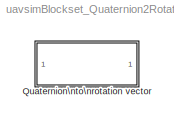
MODEL uavsimBlockset_Quaternion2Rotationvector
KIND library
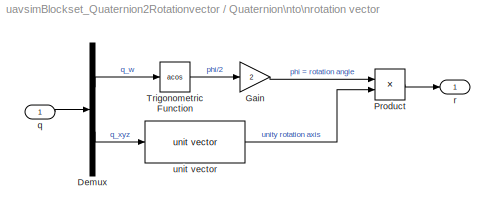
BLOCK [SubSystem] Quaternion\nto\nrotation vector
  FunctionWithSeparateData = off
  MaskHideContents = off
  MinAlgLoopOccurrences = off
  Opaque = off
  Ports = [1, 1]
  PropExecContextOutsideSubsystem = off
  RTWSystemCode = Auto
  RequestExecContextInheritance = off
  SID = 2157
BLOCK [Demux] Quaternion\nto\nrotation vector/Demux
  DisplayOption = bar
  Outputs = [1 3]
  Ports = [1, 2]
  SID = 2164
BLOCK [Gain] Quaternion\nto\nrotation vector/Gain
  Gain = 2
  OutDataTypeStr = Inherit: Inherit via internal rule
  ParamDataTypeStr = Inherit: Inherit via internal rule
  SID = 2163
  SaturateOnIntegerOverflow = off
BLOCK [Product] Quaternion\nto\nrotation vector/Product
  InputSameDT = off
  OutDataTypeStr = Inherit: Inherit via internal rule
  Ports = [2, 1]
  SID = 2167
  SaturateOnIntegerOverflow = off
BLOCK [Trigonometry] Quaternion\nto\nrotation vector/Trigonometric Function
  Operator = acos
  Ports = [1, 1]
  SID = 2162
BLOCK [Inport] Quaternion\nto\nrotation vector/q
  IconDisplay = Port number
  SID = 2158
BLOCK [Outport] Quaternion\nto\nrotation vector/r
  IconDisplay = Port number
  SID = 2160
BLOCK [Reference] Quaternion\nto\nrotation vector/unit vector  REF=uavsimBlockset_UnitVector/unit vector
  Ports = [1, 1]
  SID = 2178
  SourceBlock = uavsimBlockset_UnitVector/unit vector
  SourceType = SubSystem
LINE Quaternion\nto\nrotation vector/Demux:1 -> Quaternion\nto\nrotation vector/Trigonometric Function:1
LINE Quaternion\nto\nrotation vector/Demux:2 -> Quaternion\nto\nrotation vector/unit vector:1
LINE Quaternion\nto\nrotation vector/Gain:1 -> Quaternion\nto\nrotation vector/Product:1
LINE Quaternion\nto\nrotation vector/Product:1 -> Quaternion\nto\nrotation vector/r:1
LINE Quaternion\nto\nrotation vector/Trigonometric Function:1 -> Quaternion\nto\nrotation vector/Gain:1
LINE Quaternion\nto\nrotation vector/q:1 -> Quaternion\nto\nrotation vector/Demux:1
LINE Quaternion\nto\nrotation vector/unit vector:1 -> Quaternion\nto\nrotation vector/Product:2
